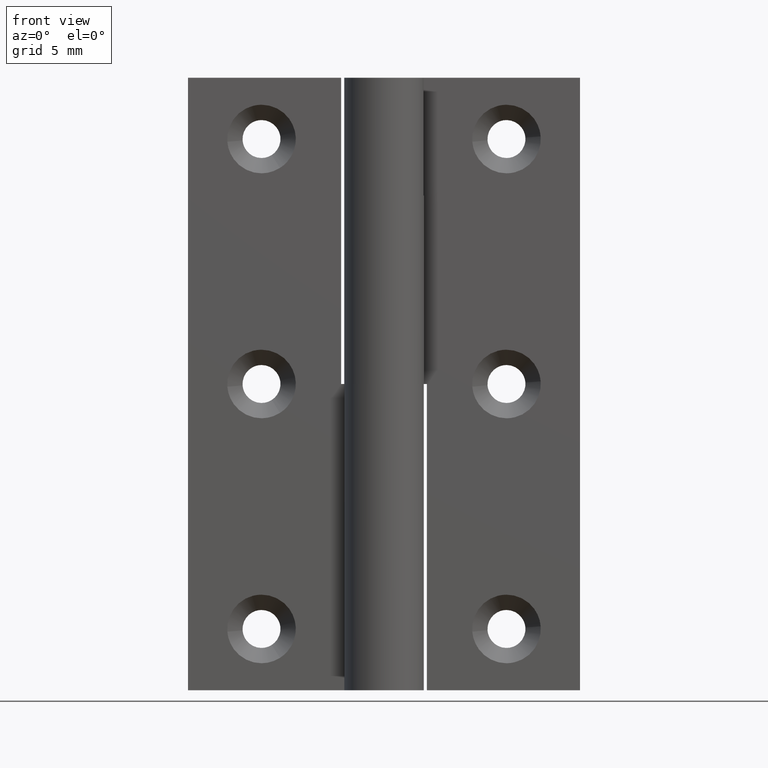
[diagram: clean part render]
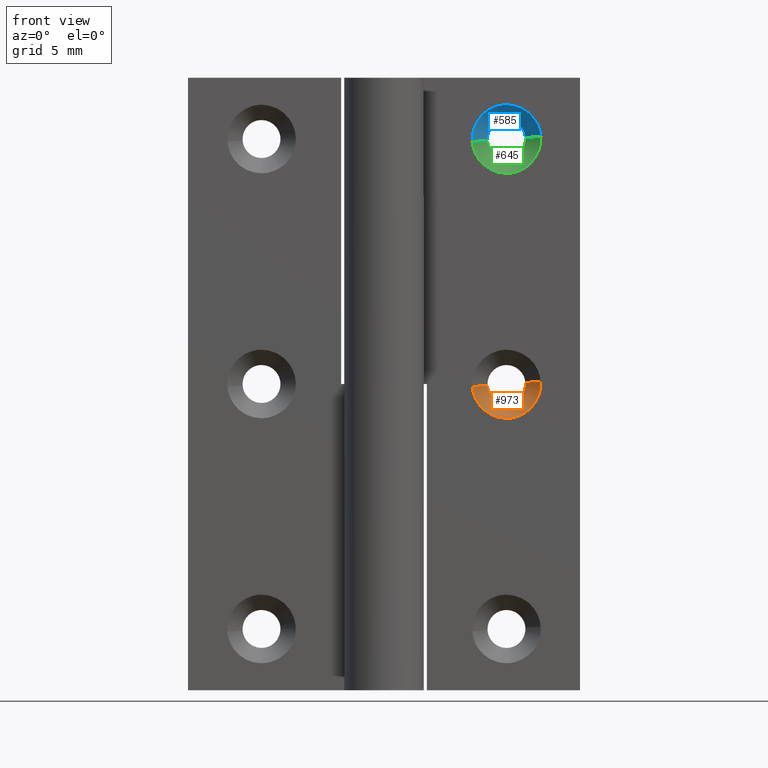
[diagram: same view with three faces highlighted in distinct colors, each labeled with its STEP entity id]
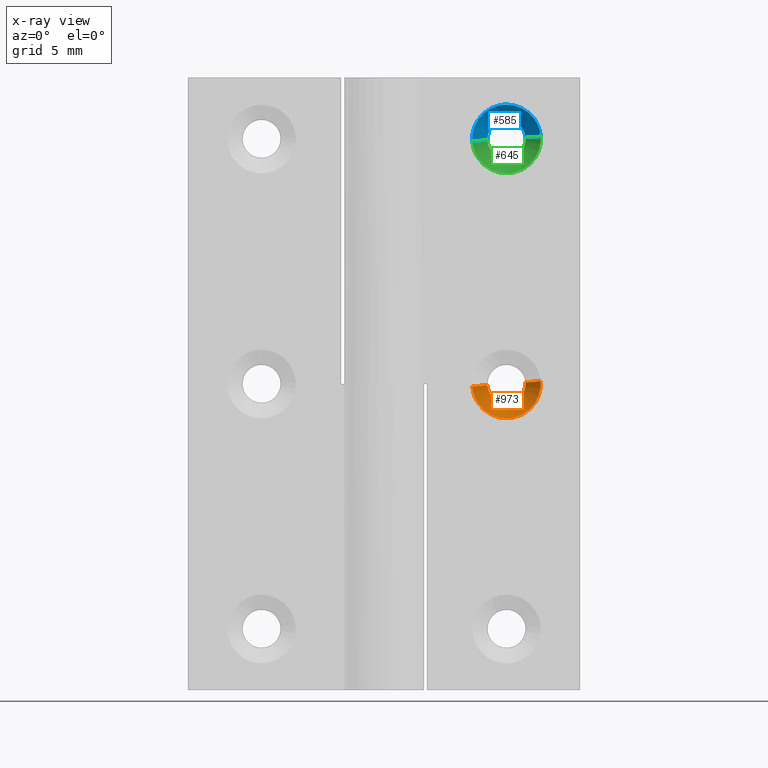
[diagram: x-ray of the same camera — body ghosted, the three highlighted faces saturated]
A machine part, front view with three faces highlighted in distinct colors.
The next image is the same camera in x-ray (body ghosted, the three faces saturated) — at least one of them is partly hidden behind the body in this view.
Their STEP definitions:

[orange] entity #973 — the highlighted face is a freeform B-spline surface patch.
#664=CARTESIAN_POINT('',(11.539877189041141,3.0,24.823143440408739));
#665=VERTEX_POINT('',#664);
#666=CARTESIAN_POINT('',(10.0,3.0,23.449999999999999));
#667=VERTEX_POINT('',#666);
#668=CARTESIAN_POINT('',(11.539877189041148,3.000000000000000,24.823143440408739));
#669=CARTESIAN_POINT('',(11.382169702536606,3.000000000000000,23.449999999999996));
#670=CARTESIAN_POINT('',(10.0,3.0,23.449999999999999));
#678=(BOUNDED_CURVE()B_SPLINE_CURVE(2,(#668,#669,#670),.UNSPECIFIED.,.F.,.U.)B_SPLINE_CURVE_WITH_KNOTS((3,3),(0.269767872206807,0.500000000000000),.UNSPECIFIED.)CURVE()GEOMETRIC_REPRESENTATION_ITEM()RATIONAL_B_SPLINE_CURVE((0.957343506988321,0.730266284065526,1.0))REPRESENTATION_ITEM(''));
#679=EDGE_CURVE('',#665,#667,#678,.T.);
#718=CARTESIAN_POINT('',(8.452891050591822,2.999999999989410,24.905374957537241));
#719=VERTEX_POINT('',#718);
#725=CARTESIAN_POINT('',(10.0,3.0,23.449999999999999));
#726=CARTESIAN_POINT('',(8.541905413289973,3.000000000000000,23.450000000000010));
#727=CARTESIAN_POINT('',(8.452891050591822,2.999999999989411,24.905374957537244));
#735=(BOUNDED_CURVE()B_SPLINE_CURVE(2,(#725,#726,#727),.UNSPECIFIED.,.F.,.U.)B_SPLINE_CURVE_WITH_KNOTS((3,3),(0.500000000000000,0.739332983858013),.UNSPECIFIED.)CURVE()GEOMETRIC_REPRESENTATION_ITEM()RATIONAL_B_SPLINE_CURVE((1.0,0.719603967958394,0.976072088000505))REPRESENTATION_ITEM(''));
#736=EDGE_CURVE('',#667,#719,#735,.T.);
#763=CARTESIAN_POINT('',(11.545221867326820,2.999999999898537,25.121611599157131));
#764=VERTEX_POINT('',#763);
#765=CARTESIAN_POINT('',(11.545221867326823,2.999999999898537,25.121611599157131));
#766=CARTESIAN_POINT('',(11.550000000000002,3.000000000000000,25.060899666636477));
#767=CARTESIAN_POINT('',(11.550000000000001,3.0,25.0));
#768=CARTESIAN_POINT('',(11.550000000000004,3.000000000000000,24.911281751242704));
#769=CARTESIAN_POINT('',(11.539877189041146,2.999999999999999,24.823143440408735));
#777=(BOUNDED_CURVE()B_SPLINE_CURVE(2,(#765,#766,#767,#768,#769),.UNSPECIFIED.,.F.,.U.)B_SPLINE_CURVE_WITH_KNOTS((3,2,3),(0.236331300461697,0.250000000000000,0.269767872206807),.UNSPECIFIED.)CURVE()GEOMETRIC_REPRESENTATION_ITEM()RATIONAL_B_SPLINE_CURVE((0.969723355814805,0.983986122380930,1.0,0.976840497121021,0.957343506988321))REPRESENTATION_ITEM(''));
#778=EDGE_CURVE('',#764,#665,#777,.T.);
#866=CARTESIAN_POINT('',(12.791368534462871,1.749999999974803,25.219685468230580));
#867=VERTEX_POINT('',#866);
#868=CARTESIAN_POINT('',(11.545221867326820,2.999999999898537,25.121611599157131));
#869=CARTESIAN_POINT('',(12.791368534462871,1.749999999974803,25.219685468230580));
#870=QUASI_UNIFORM_CURVE('',1,(#868,#869),.UNSPECIFIED.,.F.,.U.);
#871=EDGE_CURVE('',#764,#867,#870,.T.);
#888=CARTESIAN_POINT('',(7.208631465537128,1.749999999974804,24.780314531769420));
#889=VERTEX_POINT('',#888);
#905=CARTESIAN_POINT('',(8.452891050591822,2.999999999989410,24.905374957537241));
#906=CARTESIAN_POINT('',(7.208631465537128,1.749999999974804,24.780314531769420));
#907=QUASI_UNIFORM_CURVE('',1,(#905,#906),.UNSPECIFIED.,.F.,.U.);
#908=EDGE_CURVE('',#719,#889,#907,.T.);
#914=CARTESIAN_POINT('',(8.482205333954056,3.031250000000001,24.928189481170442));
#915=CARTESIAN_POINT('',(8.484056420179845,3.031250000000000,24.904669200601251));
#916=CARTESIAN_POINT('',(8.605091551029480,3.031250000000001,23.366772047756147));
#917=CARTESIAN_POINT('',(10.119159751636669,3.031250000000000,23.485931799392809));
#918=CARTESIAN_POINT('',(11.633227952243853,3.031250000000001,23.605091551029474));
#919=CARTESIAN_POINT('',(11.513222905507202,3.031250000000000,25.129900244239494));
#920=CARTESIAN_POINT('',(11.512382563394217,3.031249999999999,25.140577803175574));
#921=CARTESIAN_POINT('',(7.169750172625235,1.717968750000000,24.866094068540555));
#922=CARTESIAN_POINT('',(7.173201915201617,1.717968750000000,24.822235520668475));
#923=CARTESIAN_POINT('',(7.398897568149104,1.717968750000001,21.954500346253109));
#924=CARTESIAN_POINT('',(10.222198610948000,1.717968750000000,22.176698957201101));
#925=CARTESIAN_POINT('',(13.045499653746896,1.717968750000001,22.398897568149103));
#926=CARTESIAN_POINT('',(12.821724810938077,1.717968750000000,25.242226535683209));
#927=CARTESIAN_POINT('',(12.820157814971207,1.717968749999999,25.262137107258987));
#935=(BOUNDED_SURFACE()B_SPLINE_SURFACE(2,1,((#914,#921),(#915,#922),(#916,#923),(#917,#924),(#918,#925),(#919,#926),(#920,#927)),.UNSPECIFIED.,.F.,.F.,.U.)B_SPLINE_SURFACE_WITH_KNOTS((3,1,2,1,3),(2,2),(0.0,0.105122893547199,4.797385904804916,9.489648916062631,9.536861100338413),(0.0,1.0),.UNSPECIFIED.)GEOMETRIC_REPRESENTATION_ITEM()RATIONAL_B_SPLINE_SURFACE(((1.013123638887314,1.013123638887314),(1.006561819443657,1.006561819443657),(0.707106781186548,0.707106781186548),(1.0,1.0),(0.707106781186548,0.707106781186548),(1.002947006292395,1.002947006292395),(1.005894012584790,1.005894012584790)))REPRESENTATION_ITEM('')SURFACE());
#936=ORIENTED_EDGE('',*,*,#778,.T.);
#937=ORIENTED_EDGE('',*,*,#679,.T.);
#938=ORIENTED_EDGE('',*,*,#736,.T.);
#939=ORIENTED_EDGE('',*,*,#908,.T.);
#940=CARTESIAN_POINT('',(10.0,1.750000000000000,22.199999999999999));
#941=VERTEX_POINT('',#940);
#942=CARTESIAN_POINT('',(10.0,1.750000000000000,22.199999999999999));
#943=CARTESIAN_POINT('',(7.411706623711657,1.750000000000000,22.200000000000006));
#944=CARTESIAN_POINT('',(7.208631465537128,1.749999999974804,24.780314531769417));
#952=(BOUNDED_CURVE()B_SPLINE_CURVE(2,(#942,#943,#944),.UNSPECIFIED.,.F.,.U.)B_SPLINE_CURVE_WITH_KNOTS((3,3),(0.500000000000000,0.736331300609351),.UNSPECIFIED.)CURVE()GEOMETRIC_REPRESENTATION_ITEM()RATIONAL_B_SPLINE_CURVE((1.0,0.723120658632630,0.969723356122949))REPRESENTATION_ITEM(''));
#953=EDGE_CURVE('',#941,#889,#952,.T.);
#954=ORIENTED_EDGE('',*,*,#953,.F.);
#955=CARTESIAN_POINT('',(12.791368534462876,1.749999999974804,25.219685468230580));
#956=CARTESIAN_POINT('',(12.799999999999997,1.750000000000000,25.110012299813000));
#957=CARTESIAN_POINT('',(12.800000000000001,1.750000000000000,25.0));
#958=CARTESIAN_POINT('',(12.800000000000001,1.750000000000000,22.200000000000010));
#959=CARTESIAN_POINT('',(10.0,1.750000000000000,22.199999999999999));
#967=(BOUNDED_CURVE()B_SPLINE_CURVE(2,(#955,#956,#957,#958,#959),.UNSPECIFIED.,.F.,.U.)B_SPLINE_CURVE_WITH_KNOTS((3,2,3),(0.236331300609352,0.250000000000000,0.500000000000000),.UNSPECIFIED.)CURVE()GEOMETRIC_REPRESENTATION_ITEM()RATIONAL_B_SPLINE_CURVE((0.969723356122950,0.983986122553918,1.0,0.707106781186547,1.0))REPRESENTATION_ITEM(''));
#968=EDGE_CURVE('',#867,#941,#967,.T.);
#969=ORIENTED_EDGE('',*,*,#968,.F.);
#970=ORIENTED_EDGE('',*,*,#871,.F.);
#971=EDGE_LOOP('',(#936,#937,#938,#939,#954,#969,#970));
#972=FACE_OUTER_BOUND('',#971,.T.);
#973=ADVANCED_FACE('',(#972),#935,.F.);

[blue] entity #585 — the highlighted face is a freeform B-spline surface patch.
#390=CARTESIAN_POINT('',(8.452891050591820,2.999999999989410,44.905374957537227));
#391=VERTEX_POINT('',#390);
#435=CARTESIAN_POINT('',(11.545221867326820,2.999999999898537,45.121611599157127));
#436=VERTEX_POINT('',#435);
#452=CARTESIAN_POINT('',(10.0,3.0,46.549999999999997));
#453=VERTEX_POINT('',#452);
#454=CARTESIAN_POINT('',(10.0,3.0,46.549999999999997));
#455=CARTESIAN_POINT('',(11.432805260635954,3.0,46.549999999999997));
#456=CARTESIAN_POINT('',(11.545221867326816,2.999999999898537,45.121611599157134));
#464=(BOUNDED_CURVE()B_SPLINE_CURVE(2,(#454,#455,#456),.UNSPECIFIED.,.F.,.U.)B_SPLINE_CURVE_WITH_KNOTS((3,3),(0.0,0.236331300461697),.UNSPECIFIED.)CURVE()GEOMETRIC_REPRESENTATION_ITEM()RATIONAL_B_SPLINE_CURVE((1.0,0.723120658805618,0.969723355814805))REPRESENTATION_ITEM(''));
#465=EDGE_CURVE('',#453,#436,#464,.T.);
#467=CARTESIAN_POINT('',(8.452891050591820,2.999999999989410,44.905374957537234));
#468=CARTESIAN_POINT('',(8.450000000000001,3.000000000000000,44.952643314067039));
#469=CARTESIAN_POINT('',(8.450000000000001,3.0,45.0));
#470=CARTESIAN_POINT('',(8.450000000000001,3.000000000000000,46.549999999999990));
#471=CARTESIAN_POINT('',(10.0,3.0,46.549999999999997));
#479=(BOUNDED_CURVE()B_SPLINE_CURVE(2,(#467,#468,#469,#470,#471),.UNSPECIFIED.,.F.,.U.)B_SPLINE_CURVE_WITH_KNOTS((3,2,3),(0.739332983858012,0.750000000000000,1.0),.UNSPECIFIED.)CURVE()GEOMETRIC_REPRESENTATION_ITEM()RATIONAL_B_SPLINE_CURVE((0.976072088000504,0.987502813228153,1.0,0.707106781186547,1.0))REPRESENTATION_ITEM(''));
#480=EDGE_CURVE('',#391,#453,#479,.T.);
#519=CARTESIAN_POINT('',(11.514068200607189,3.031250000000000,45.119159751636673));
#520=CARTESIAN_POINT('',(11.394908448970520,3.031250000000001,46.633227952243836));
#521=CARTESIAN_POINT('',(9.880840248363334,3.031250000000000,46.514068200607177));
#522=CARTESIAN_POINT('',(8.366772047756149,3.031250000000001,46.394908448970519));
#523=CARTESIAN_POINT('',(8.485931799392812,3.031250000000000,44.880840248363327));
#524=CARTESIAN_POINT('',(12.823301042798899,1.717968750000000,45.222198610947999));
#525=CARTESIAN_POINT('',(12.601102431850896,1.717968750000001,48.045499653746894));
#526=CARTESIAN_POINT('',(9.777801389052000,1.717968750000000,47.823301042798903));
#527=CARTESIAN_POINT('',(6.954500346253103,1.717968750000001,47.601102431850904));
#528=CARTESIAN_POINT('',(7.176698957201103,1.717968750000000,44.777801389052001));
#536=(BOUNDED_SURFACE()B_SPLINE_SURFACE(2,1,((#519,#524),(#520,#525),(#521,#526),(#522,#527),(#523,#528)),.UNSPECIFIED.,.F.,.F.,.U.)B_SPLINE_SURFACE_WITH_KNOTS((3,2,3),(2,2),(0.0,4.692263011257720,9.384526022515439),(0.0,1.0),.UNSPECIFIED.)GEOMETRIC_REPRESENTATION_ITEM()RATIONAL_B_SPLINE_SURFACE(((1.0,1.0),(0.707106781186548,0.707106781186548),(1.0,1.0),(0.707106781186548,0.707106781186548),(1.0,1.0)))REPRESENTATION_ITEM('')SURFACE());
#537=ORIENTED_EDGE('',*,*,#465,.T.);
#538=CARTESIAN_POINT('',(12.791368534462871,1.749999999974804,45.219685468230573));
#539=VERTEX_POINT('',#538);
#540=CARTESIAN_POINT('',(11.545221867326820,2.999999999898537,45.121611599157127));
#541=CARTESIAN_POINT('',(12.791368534462871,1.749999999974804,45.219685468230573));
#542=QUASI_UNIFORM_CURVE('',1,(#540,#541),.UNSPECIFIED.,.F.,.U.);
#543=EDGE_CURVE('',#436,#539,#542,.T.);
#544=ORIENTED_EDGE('',*,*,#543,.T.);
#545=CARTESIAN_POINT('',(10.0,1.750000000000000,47.799999999999997));
#546=VERTEX_POINT('',#545);
#547=CARTESIAN_POINT('',(10.0,1.750000000000000,47.799999999999997));
#548=CARTESIAN_POINT('',(12.588293376288354,1.750000000000000,47.799999999999997));
#549=CARTESIAN_POINT('',(12.791368534462876,1.749999999974804,45.219685468230573));
#557=(BOUNDED_CURVE()B_SPLINE_CURVE(2,(#547,#548,#549),.UNSPECIFIED.,.F.,.U.)B_SPLINE_CURVE_WITH_KNOTS((3,3),(0.0,0.236331300609352),.UNSPECIFIED.)CURVE()GEOMETRIC_REPRESENTATION_ITEM()RATIONAL_B_SPLINE_CURVE((1.0,0.723120658632629,0.969723356122951))REPRESENTATION_ITEM(''));
#558=EDGE_CURVE('',#546,#539,#557,.T.);
#559=ORIENTED_EDGE('',*,*,#558,.F.);
#560=CARTESIAN_POINT('',(7.208631465537128,1.749999999974804,44.780314531769420));
#561=VERTEX_POINT('',#560);
#562=CARTESIAN_POINT('',(7.208631465537128,1.749999999974804,44.780314531769420));
#563=CARTESIAN_POINT('',(7.200000000000000,1.750000000000000,44.889987700187000));
#564=CARTESIAN_POINT('',(7.200000000000000,1.750000000000000,45.0));
#565=CARTESIAN_POINT('',(7.200000000000000,1.750000000000000,47.799999999999997));
#566=CARTESIAN_POINT('',(10.0,1.750000000000000,47.799999999999997));
#574=(BOUNDED_CURVE()B_SPLINE_CURVE(2,(#562,#563,#564,#565,#566),.UNSPECIFIED.,.F.,.U.)B_SPLINE_CURVE_WITH_KNOTS((3,2,3),(0.736331300609351,0.750000000000000,1.0),.UNSPECIFIED.)CURVE()GEOMETRIC_REPRESENTATION_ITEM()RATIONAL_B_SPLINE_CURVE((0.969723356122949,0.983986122553918,1.0,0.707106781186547,1.0))REPRESENTATION_ITEM(''));
#575=EDGE_CURVE('',#561,#546,#574,.T.);
#576=ORIENTED_EDGE('',*,*,#575,.F.);
#577=CARTESIAN_POINT('',(8.452891050591820,2.999999999989410,44.905374957537227));
#578=CARTESIAN_POINT('',(7.208631465537128,1.749999999974804,44.780314531769420));
#579=QUASI_UNIFORM_CURVE('',1,(#577,#578),.UNSPECIFIED.,.F.,.U.);
#580=EDGE_CURVE('',#391,#561,#579,.T.);
#581=ORIENTED_EDGE('',*,*,#580,.F.);
#582=ORIENTED_EDGE('',*,*,#480,.T.);
#583=EDGE_LOOP('',(#537,#544,#559,#576,#581,#582));
#584=FACE_OUTER_BOUND('',#583,.T.);
#585=ADVANCED_FACE('',(#584),#536,.F.);

[green] entity #645 — the highlighted face is a freeform B-spline surface patch.
#336=CARTESIAN_POINT('',(11.539877189041141,3.0,44.823143440408742));
#337=VERTEX_POINT('',#336);
#338=CARTESIAN_POINT('',(10.0,3.0,43.450000000000003));
#339=VERTEX_POINT('',#338);
#340=CARTESIAN_POINT('',(11.539877189041148,3.000000000000000,44.823143440408735));
#341=CARTESIAN_POINT('',(11.382169702536606,3.000000000000000,43.449999999999989));
#342=CARTESIAN_POINT('',(10.0,3.0,43.450000000000003));
#350=(BOUNDED_CURVE()B_SPLINE_CURVE(2,(#340,#341,#342),.UNSPECIFIED.,.F.,.U.)B_SPLINE_CURVE_WITH_KNOTS((3,3),(0.269767872206807,0.500000000000000),.UNSPECIFIED.)CURVE()GEOMETRIC_REPRESENTATION_ITEM()RATIONAL_B_SPLINE_CURVE((0.957343506988321,0.730266284065526,1.0))REPRESENTATION_ITEM(''));
#351=EDGE_CURVE('',#337,#339,#350,.T.);
#390=CARTESIAN_POINT('',(8.452891050591820,2.999999999989410,44.905374957537227));
#391=VERTEX_POINT('',#390);
#397=CARTESIAN_POINT('',(10.0,3.0,43.450000000000003));
#398=CARTESIAN_POINT('',(8.541905413289991,3.000000000000001,43.449999999999996));
#399=CARTESIAN_POINT('',(8.452891050591820,2.999999999989409,44.905374957537241));
#407=(BOUNDED_CURVE()B_SPLINE_CURVE(2,(#397,#398,#399),.UNSPECIFIED.,.F.,.U.)B_SPLINE_CURVE_WITH_KNOTS((3,3),(0.500000000000000,0.739332983858011),.UNSPECIFIED.)CURVE()GEOMETRIC_REPRESENTATION_ITEM()RATIONAL_B_SPLINE_CURVE((1.0,0.719603967958396,0.976072088000501))REPRESENTATION_ITEM(''));
#408=EDGE_CURVE('',#339,#391,#407,.T.);
#435=CARTESIAN_POINT('',(11.545221867326820,2.999999999898537,45.121611599157127));
#436=VERTEX_POINT('',#435);
#437=CARTESIAN_POINT('',(11.545221867326818,2.999999999898538,45.121611599157134));
#438=CARTESIAN_POINT('',(11.549999999999995,3.000000000000001,45.060899666636473));
#439=CARTESIAN_POINT('',(11.550000000000001,3.0,45.0));
#440=CARTESIAN_POINT('',(11.550000000000002,3.000000000000000,44.911281751242704));
#441=CARTESIAN_POINT('',(11.539877189041141,3.000000000000000,44.823143440408749));
#449=(BOUNDED_CURVE()B_SPLINE_CURVE(2,(#437,#438,#439,#440,#441),.UNSPECIFIED.,.F.,.U.)B_SPLINE_CURVE_WITH_KNOTS((3,2,3),(0.236331300461697,0.250000000000000,0.269767872206807),.UNSPECIFIED.)CURVE()GEOMETRIC_REPRESENTATION_ITEM()RATIONAL_B_SPLINE_CURVE((0.969723355814805,0.983986122380929,1.0,0.976840497121022,0.957343506988322))REPRESENTATION_ITEM(''));
#450=EDGE_CURVE('',#436,#337,#449,.T.);
#538=CARTESIAN_POINT('',(12.791368534462871,1.749999999974804,45.219685468230573));
#539=VERTEX_POINT('',#538);
#540=CARTESIAN_POINT('',(11.545221867326820,2.999999999898537,45.121611599157127));
#541=CARTESIAN_POINT('',(12.791368534462871,1.749999999974804,45.219685468230573));
#542=QUASI_UNIFORM_CURVE('',1,(#540,#541),.UNSPECIFIED.,.F.,.U.);
#543=EDGE_CURVE('',#436,#539,#542,.T.);
#560=CARTESIAN_POINT('',(7.208631465537128,1.749999999974804,44.780314531769420));
#561=VERTEX_POINT('',#560);
#577=CARTESIAN_POINT('',(8.452891050591820,2.999999999989410,44.905374957537227));
#578=CARTESIAN_POINT('',(7.208631465537128,1.749999999974804,44.780314531769420));
#579=QUASI_UNIFORM_CURVE('',1,(#577,#578),.UNSPECIFIED.,.F.,.U.);
#580=EDGE_CURVE('',#391,#561,#579,.T.);
#586=CARTESIAN_POINT('',(8.482205333857637,3.031250000000000,44.928189482395581));
#587=CARTESIAN_POINT('',(8.484056420131006,3.031250000000001,44.904669201221829));
#588=CARTESIAN_POINT('',(8.605091551029480,3.031250000000001,43.366772047756157));
#589=CARTESIAN_POINT('',(10.119159751636669,3.031250000000000,43.485931799392823));
#590=CARTESIAN_POINT('',(11.633227952243853,3.031250000000001,43.605091551029481));
#591=CARTESIAN_POINT('',(11.513222905506957,3.031250000000000,45.129900244242585));
#592=CARTESIAN_POINT('',(11.512382563393732,3.031250000000001,45.140577803181777));
#593=CARTESIAN_POINT('',(7.169750172445439,1.717968750000000,44.866094070825092));
#594=CARTESIAN_POINT('',(7.173201915110544,1.717968750000000,44.822235521825689));
#595=CARTESIAN_POINT('',(7.398897568149104,1.717968750000001,41.954500346253106));
#596=CARTESIAN_POINT('',(10.222198610948000,1.717968750000000,42.176698957201097));
#597=CARTESIAN_POINT('',(13.045499653746896,1.717968750000001,42.398897568149103));
#598=CARTESIAN_POINT('',(12.821724810937614,1.717968749999999,45.242226535688999));
#599=CARTESIAN_POINT('',(12.820157814970306,1.717968750000001,45.262137107270533));
#607=(BOUNDED_SURFACE()B_SPLINE_SURFACE(2,1,((#586,#593),(#587,#594),(#588,#595),(#589,#596),(#590,#597),(#591,#598),(#592,#599)),.UNSPECIFIED.,.F.,.F.,.U.)B_SPLINE_SURFACE_WITH_KNOTS((3,1,2,1,3),(2,2),(0.0,0.105122896302900,4.797385907560619,9.489648918818338,9.536861103107830),(0.0,1.0),.UNSPECIFIED.)GEOMETRIC_REPRESENTATION_ITEM()RATIONAL_B_SPLINE_SURFACE(((1.013123639231338,1.013123639231338),(1.006561819615669,1.006561819615669),(0.707106781186548,0.707106781186548),(1.0,1.0),(0.707106781186548,0.707106781186548),(1.002947006293251,1.002947006293251),(1.005894012586501,1.005894012586501)))REPRESENTATION_ITEM('')SURFACE());
#608=ORIENTED_EDGE('',*,*,#450,.T.);
#609=ORIENTED_EDGE('',*,*,#351,.T.);
#610=ORIENTED_EDGE('',*,*,#408,.T.);
#611=ORIENTED_EDGE('',*,*,#580,.T.);
#612=CARTESIAN_POINT('',(10.0,1.750000000000000,42.200000000000003));
#613=VERTEX_POINT('',#612);
#614=CARTESIAN_POINT('',(10.0,1.750000000000000,42.200000000000003));
#615=CARTESIAN_POINT('',(7.411706623711657,1.750000000000000,42.200000000000003));
#616=CARTESIAN_POINT('',(7.208631465537128,1.749999999974804,44.780314531769420));
#624=(BOUNDED_CURVE()B_SPLINE_CURVE(2,(#614,#615,#616),.UNSPECIFIED.,.F.,.U.)B_SPLINE_CURVE_WITH_KNOTS((3,3),(0.500000000000000,0.736331300609351),.UNSPECIFIED.)CURVE()GEOMETRIC_REPRESENTATION_ITEM()RATIONAL_B_SPLINE_CURVE((1.0,0.723120658632630,0.969723356122949))REPRESENTATION_ITEM(''));
#625=EDGE_CURVE('',#613,#561,#624,.T.);
#626=ORIENTED_EDGE('',*,*,#625,.F.);
#627=CARTESIAN_POINT('',(12.791368534462874,1.749999999974804,45.219685468230580));
#628=CARTESIAN_POINT('',(12.799999999999999,1.750000000000000,45.110012299813000));
#629=CARTESIAN_POINT('',(12.800000000000001,1.750000000000000,45.0));
#630=CARTESIAN_POINT('',(12.800000000000001,1.750000000000000,42.199999999999996));
#631=CARTESIAN_POINT('',(10.0,1.750000000000000,42.200000000000003));
#639=(BOUNDED_CURVE()B_SPLINE_CURVE(2,(#627,#628,#629,#630,#631),.UNSPECIFIED.,.F.,.U.)B_SPLINE_CURVE_WITH_KNOTS((3,2,3),(0.236331300609352,0.250000000000000,0.500000000000000),.UNSPECIFIED.)CURVE()GEOMETRIC_REPRESENTATION_ITEM()RATIONAL_B_SPLINE_CURVE((0.969723356122951,0.983986122553919,1.0,0.707106781186547,1.0))REPRESENTATION_ITEM(''));
#640=EDGE_CURVE('',#539,#613,#639,.T.);
#641=ORIENTED_EDGE('',*,*,#640,.F.);
#642=ORIENTED_EDGE('',*,*,#543,.F.);
#643=EDGE_LOOP('',(#608,#609,#610,#611,#626,#641,#642));
#644=FACE_OUTER_BOUND('',#643,.T.);
#645=ADVANCED_FACE('',(#644),#607,.F.);